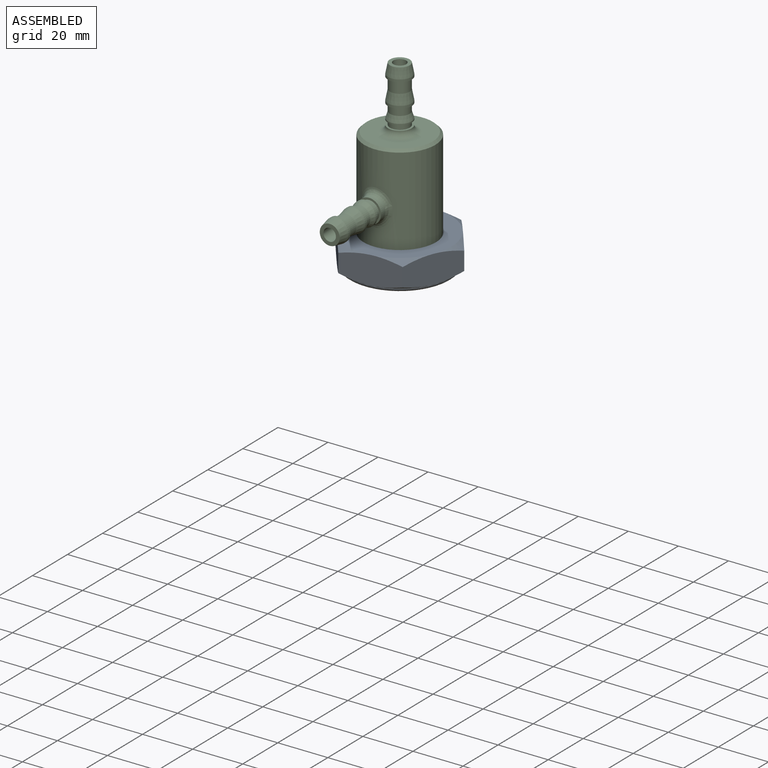
[diagram: assembled view]
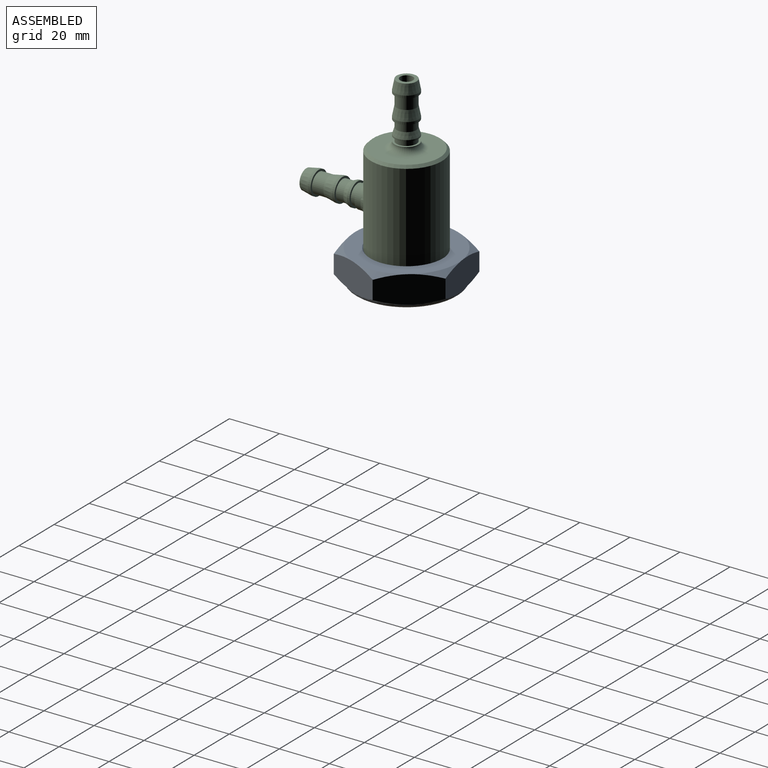
[diagram: assembled view, second angle]
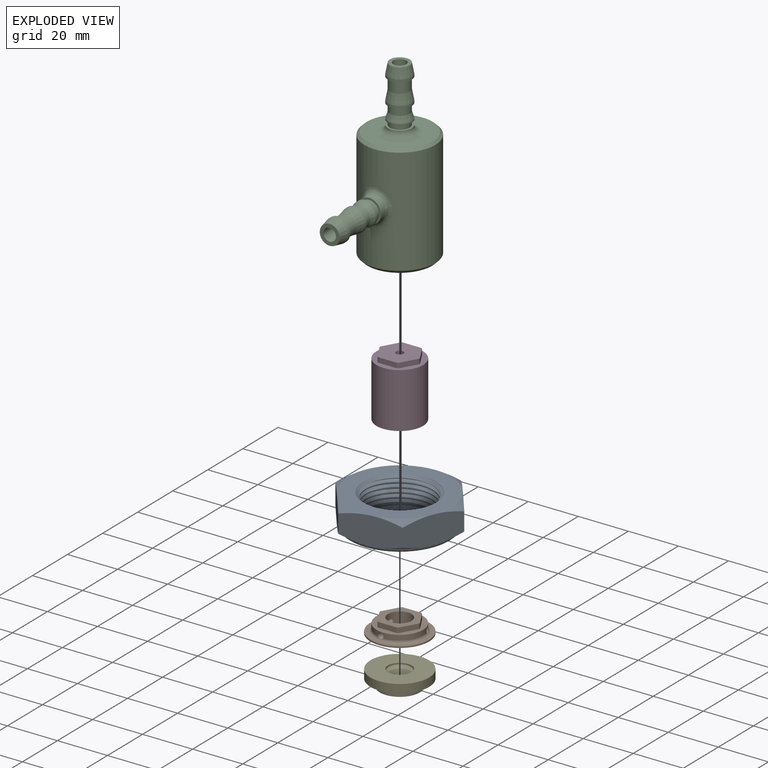
[diagram: exploded view]
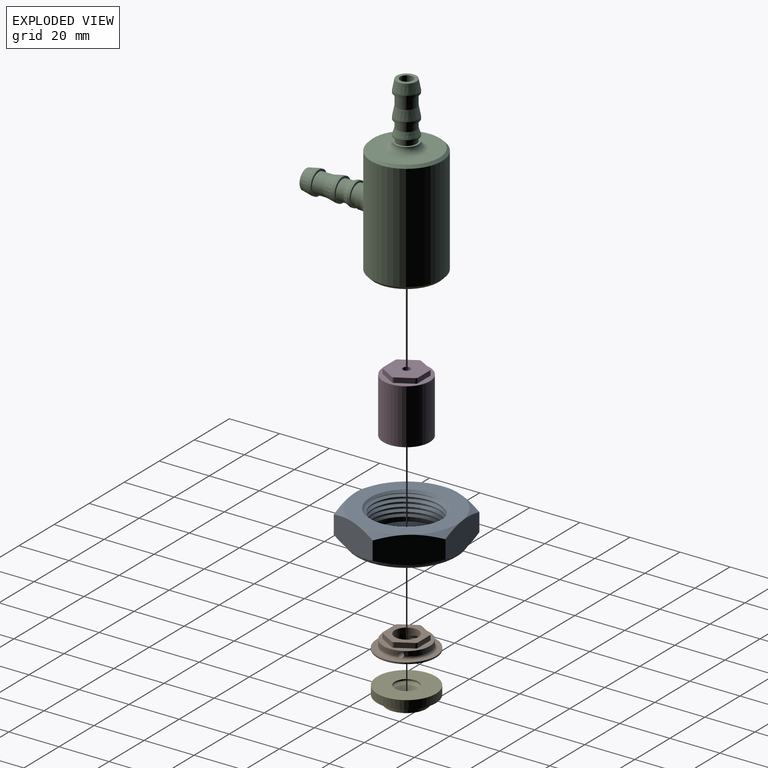
[diagram: exploded view, second angle]
ASSEMBLY  parts=5 mates=9
PART A: 32 faces, bbox 49.6x49.6x16.6 mm
  f0: plane 41.28x41.28mm, normal (0,0,1), area 672.9mm2, adj f9,f22,f23,f25,f27,f29,f31
  f1: cylinder r=13.25mm len=26.5mm, axis (0,0,1), area 146.3mm2, adj f2,f8,f10,f11,f12
  f2: cylinder r=13.25mm len=26.5mm, axis (0,0,1), area 37.7mm2, adj f1,f3,f10,f11
  f3: cylinder r=13.25mm len=26.5mm, axis (0,0,1), area 37.8mm2, adj f2,f4,f10,f11
  f4: cylinder r=13.25mm len=26.5mm, axis (0,0,1), area 37.8mm2, adj f3,f5,f10,f11
  f5: cylinder r=13.25mm len=26.5mm, axis (0,0,1), area 29.6mm2, adj f4,f9,f10,f11
  f6: cylinder r=8mm len=16mm, axis (0,0,1), area 150.8mm2, adj f7,f8
  f7: revolved ~41.28x41.28mm, area 1264.5mm2, adj f6,f14,f21,f24,f26,f28,f30
  f8: plane 26.5x26.5mm, normal (0,0,1), area 350.5mm2, adj f1,f6
  f9: cone r=13.25mm half-angle=45deg, axis (0,0,1), area 108.5mm2, adj f0,f5,f10,f11,f13
  f10: bspline ~32.87x28.46mm, area 495.7mm2, adj f1,f2,f3,f4,f5,f9,f12,f13
  f11: bspline ~32.87x28.46mm, area 453.5mm2, adj f1,f2,f3,f4,f5,f9,f12,f13
  f12: plane 1.37x1.03mm, normal (0.97,-0.26,0), area 0.8mm2, adj f1,f10,f11,f13
  f13: bspline ~33.09x28.66mm, area 126.4mm2, adj f9,f10,f11,f12
  f14: cone r=20.64mm half-angle=60deg, axis (0,0,1), area 41.9mm2, adj f7,f15,f20
  f15: plane 22.59x13.87mm, normal (0.87,-0.5,0), area 232mm2, adj f14,f16,f20,f21,f22,f23
  f16: plane 25.81x12.97mm, normal (0,-1,0), area 232mm2, adj f15,f17,f21,f23,f24,f25
  f17: plane 22.59x13.87mm, normal (-0.87,-0.5,0), area 232mm2, adj f16,f18,f24,f25,f26,f27
  f18: plane 22.59x13.87mm, normal (-0.87,0.5,0), area 232mm2, adj f17,f19,f26,f27,f28,f29
  f19: plane 25.81x12.97mm, normal (0,1,0), area 232mm2, adj f18,f20,f28,f29,f30,f31
  f20: plane 22.59x13.87mm, normal (0.87,0.5,0), area 232mm2, adj f14,f15,f19,f22,f30,f31
  f21: cone r=20.64mm half-angle=60deg, axis (0,0,1), area 41.9mm2, adj f7,f15,f16
  f22: cone r=20.64mm half-angle=60deg, axis (0,0,-1), area 41.9mm2, adj f0,f15,f20
  f23: cone r=20.64mm half-angle=60deg, axis (0,0,-1), area 41.9mm2, adj f0,f15,f16
  f24: cone r=20.64mm half-angle=60deg, axis (0,0,1), area 41.9mm2, adj f7,f16,f17
  f25: cone r=20.64mm half-angle=60deg, axis (0,0,-1), area 41.9mm2, adj f0,f16,f17
  f26: cone r=20.64mm half-angle=60deg, axis (0,0,1), area 41.9mm2, adj f7,f17,f18
  f27: cone r=20.64mm half-angle=60deg, axis (0,0,-1), area 41.9mm2, adj f0,f17,f18
  f28: cone r=20.64mm half-angle=60deg, axis (0,0,1), area 41.9mm2, adj f7,f18,f19
  f29: cone r=20.64mm half-angle=60deg, axis (0,0,-1), area 41.9mm2, adj f0,f18,f19
  f30: cone r=20.64mm half-angle=60deg, axis (0,0,1), area 41.9mm2, adj f7,f19,f20
  f31: cone r=20.64mm half-angle=60deg, axis (0,0,-1), area 41.9mm2, adj f0,f19,f20
PART B: 25 faces, bbox 23.7x23.7x5.6 mm
  f0: plane 18.94x18.94mm, normal (0,0,1), area 102.5mm2, adj f3,f10,f11,f12,f13,f14,f15,f16
  f1: cylinder r=1.1mm len=8.29mm, axis (1,0,0), area 39.9mm2, adj f3,f5,f6
  f2: cylinder r=1.1mm len=8.28mm, axis (-0.5,-0.87,0), area 40.1mm2, adj f3,f5,f6
  f3: cylinder r=9.3mm len=18.6mm, axis (0,0,-1), area 107.3mm2, adj f0,f1,f2,f4,f6
  f4: cylinder r=1.1mm len=8.28mm, axis (-0.5,0.87,0), area 40.1mm2, adj f3,f5,f6
  f5: cylinder r=4.7mm len=9.4mm, axis (0,0,-1), area 86.9mm2, adj f1,f2,f4,f7,f21,f22
  f6: torus R=10.3mm, axis (0,0,-1), area 92.5mm2, adj f1,f2,f3,f4,f8
  f7: plane 23.71x23.71mm, normal (0,0,-1), area 360.7mm2, adj f5,f9
  f8: plane 23.71x23.71mm, normal (0,0,1), area 96.8mm2, adj f6,f9
  f9: cylinder r=11.7mm len=23.4mm, axis (0,0,-1), area 44.1mm2, adj f7,f8
  f10: plane 6x3.46mm, normal (0.87,-0.5,0), area 13.8mm2, adj f0,f11,f23,f24
  f11: cylinder r=1mm len=2mm, axis (0,0,-1), area 2.1mm2, adj f0,f10,f12,f24
  f12: plane 6x3.46mm, normal (0.87,0.5,0), area 13.8mm2, adj f0,f11,f13,f24
  f13: cylinder r=1mm len=2mm, axis (0,0,-1), area 2.1mm2, adj f0,f12,f14,f24
  f14: plane 6.92x2mm, normal (0,1,0), area 13.8mm2, adj f0,f13,f15,f24
  f15: cylinder r=1mm len=2mm, axis (0,0,-1), area 2.1mm2, adj f0,f14,f16,f24
  f16: plane 6x3.46mm, normal (-0.87,0.5,0), area 13.8mm2, adj f0,f15,f17,f24
  f17: cylinder r=1mm len=2mm, axis (0,0,-1), area 2.1mm2, adj f0,f16,f18,f24
  f18: plane 6x3.46mm, normal (-0.87,-0.5,0), area 13.8mm2, adj f0,f17,f19,f24
  f19: cylinder r=1mm len=2mm, axis (0,0,-1), area 2.1mm2, adj f0,f18,f20,f24
  f20: plane 6.92x2mm, normal (0,-1,0), area 13.8mm2, adj f0,f19,f23,f24
  f21: extruded ~8.82x6.95mm, area 29.5mm2, adj f5,f22,f24
  f22: extruded ~8.82x6.95mm, area 29.5mm2, adj f5,f21,f24
  f23: cylinder r=1mm len=2mm, axis (0,0,-1), area 2.1mm2, adj f0,f10,f20,f24
  f24: plane 15.85x13.99mm, normal (0,0,1), area 99.8mm2, adj f10,f11,f12,f13,f14,f15,f16,f17
PART C: 55 faces, bbox 28.4x54.2x70 mm
  f0: plane 7.94x7.94mm, normal (0,0,1), area 29mm2, adj f9,f45
  f1: cylinder r=1.5mm len=4.56mm, axis (0,0,1), area 43mm2, adj f6,f8
  f2: cylinder r=11.7mm len=27mm, axis (0,0,1), area 1965mm2, adj f3,f7,f39
  f3: plane 25.8x25.8mm, normal (0,0,-1), area 92.7mm2, adj f2,f13
  f4: cylinder r=14.2mm len=42.7mm, axis (0,0,1), area 3665.1mm2, adj f11,f12,f13
  f5: plane 26.4x26.4mm, normal (0,0,1), area 381.7mm2, adj f12,f41
  f6: plane 15.86x14mm, normal (0,0,-1), area 162.3mm2, adj f1,f14,f15,f16,f17,f18,f19,f20
  f7: plane 23.4x23.4mm, normal (0,0,-1), area 260.6mm2, adj f2,f14,f15,f16,f17,f18,f19,f20
  f8: cone r=0mm half-angle=59deg, axis (0,0,1), area 15.6mm2, adj f1,f9
  f9: cylinder r=2.55mm len=35.81mm, axis (0,0,1), area 574.4mm2, adj f0,f8
  f10: cylinder r=4.76mm len=9.53mm, axis (0,-1,0), area 47.8mm2, adj f11,f28
  f11: bspline ~14.54x12.37mm, area 116.6mm2, adj f4,f10
  f12: cone r=13.2mm half-angle=45deg, axis (0,0,-1), area 121.7mm2, adj f4,f5
  f13: cone r=14.2mm half-angle=45deg, axis (0,0,1), area 156.5mm2, adj f3,f4
  f14: plane 6x3.46mm, normal (-0.87,0.5,0), area 13.9mm2, adj f6,f7,f20,f25
  f15: plane 6.93x2mm, normal (0,1,0), area 13.9mm2, adj f6,f7,f20,f21
  f16: plane 6x3.46mm, normal (0.87,0.5,0), area 13.9mm2, adj f6,f7,f21,f22
  f17: plane 6x3.46mm, normal (0.87,-0.5,0), area 13.9mm2, adj f6,f7,f22,f23
  f18: plane 6.93x2mm, normal (0,-1,0), area 13.9mm2, adj f6,f7,f23,f24
  f19: plane 6x3.46mm, normal (-0.87,-0.5,0), area 13.9mm2, adj f6,f7,f24,f25
  f20: cylinder r=1mm len=2mm, axis (0,0,-1), area 2.1mm2, adj f6,f7,f14,f15
  f21: cylinder r=1mm len=2mm, axis (0,0,-1), area 2.1mm2, adj f6,f7,f15,f16
  f22: cylinder r=1mm len=2mm, axis (0,0,-1), area 2.1mm2, adj f6,f7,f16,f17
  f23: cylinder r=1mm len=2mm, axis (0,0,-1), area 2.1mm2, adj f6,f7,f17,f18
  f24: cylinder r=1mm len=2mm, axis (0,0,-1), area 2.1mm2, adj f6,f7,f18,f19
  f25: cylinder r=1mm len=2mm, axis (0,0,-1), area 2.1mm2, adj f6,f7,f14,f19
  f26: plane 9.53x9.53mm, normal (0,1,0), area 21.8mm2, adj f27,f29
  f27: cylinder r=3.97mm len=7.94mm, axis (0,1,0), area 49.9mm2, adj f26,f28
  f28: plane 9.53x9.53mm, normal (0,-1,0), area 21.8mm2, adj f10,f27
  f29: cylinder r=4.76mm len=9.53mm, axis (0,-1,0), area 29.9mm2, adj f26,f32
  f30: plane 9.53x9.53mm, normal (0,1,0), area 21.8mm2, adj f31,f33
  f31: cylinder r=3.97mm len=7.94mm, axis (0,1,0), area 74.8mm2, adj f30,f32
  f32: cone r=3.97mm half-angle=21.6deg, axis (0,1,0), area 59mm2, adj f29,f31
  f33: cylinder r=4.76mm len=9.53mm, axis (0,-1,0), area 29.9mm2, adj f30,f36
  f34: plane 9.53x9.53mm, normal (0,1,0), area 21.8mm2, adj f35,f37
  f35: cylinder r=3.97mm len=7.94mm, axis (0,1,0), area 112.8mm2, adj f34,f36
  f36: cone r=3.97mm half-angle=11.2deg, axis (0,1,0), area 111.9mm2, adj f33,f35
  f37: cylinder r=4.76mm len=9.53mm, axis (0,-1,0), area 29.9mm2, adj f34,f38
  f38: cone r=3.97mm half-angle=11.2deg, axis (0,1,0), area 111.9mm2, adj f37,f40
  f39: cylinder r=2.5mm len=28.57mm, axis (0,-1,0), area 446.7mm2, adj f2,f40
  f40: plane 7.94x7.94mm, normal (0,-1,0), area 29.8mm2, adj f38,f39
  f41: torus R=7.26mm, axis (0,0,1), area 139.2mm2, adj f5,f44
  f42: plane 9.53x9.53mm, normal (0,0,-1), area 21.8mm2, adj f43,f46
  f43: cylinder r=3.97mm len=7.94mm, axis (0,0,-1), area 49.9mm2, adj f42,f44
  f44: plane 9.53x9.53mm, normal (0,0,1), area 21.8mm2, adj f41,f43
  f45: cone r=3.97mm half-angle=11.2deg, axis (0,0,-1), area 111.9mm2, adj f0,f54
  f46: cylinder r=4.76mm len=9.53mm, axis (0,0,-1), area 15mm2, adj f42,f49
  f47: plane 9.53x9.53mm, normal (0,0,-1), area 21.8mm2, adj f48,f50
  f48: cylinder r=3.97mm len=7.94mm, axis (0,0,-1), area 74.8mm2, adj f47,f49
  f49: cone r=3.97mm half-angle=17.6deg, axis (0,0,-1), area 71.9mm2, adj f46,f48
  f50: cylinder r=4.76mm len=9.53mm, axis (0,0,-1), area 29.9mm2, adj f47,f53
  f51: plane 9.53x9.53mm, normal (0,0,-1), area 21.8mm2, adj f52,f54
  f52: cylinder r=3.97mm len=7.94mm, axis (0,0,-1), area 112.8mm2, adj f51,f53
  f53: cone r=3.97mm half-angle=11.2deg, axis (0,0,-1), area 111.9mm2, adj f50,f52
  f54: cylinder r=4.76mm len=9.53mm, axis (0,0,-1), area 29.9mm2, adj f45,f51
PART D: 32 faces, bbox 18.6x18.6x24 mm
  f0: plane 18.6x18.6mm, normal (0,0,-1), area 102.3mm2, adj f7,f20,f21,f22,f23,f24,f25,f26
  f1: plane 18.6x18.6mm, normal (0,0,1), area 102.8mm2, adj f7,f8,f9,f10,f11,f12,f13,f14
  f2: plane 15.83x13.98mm, normal (0,0,1), area 161.9mm2, adj f3,f8,f9,f10,f11,f12,f13,f14
  f3: cylinder r=1.5mm len=24mm, axis (0,0,1), area 226.2mm2, adj f2,f4
  f4: plane 9.38x9.38mm, normal (0,0,-1), area 62mm2, adj f3,f5
  f5: cylinder r=4.69mm len=9.38mm, axis (0,0,1), area 58.9mm2, adj f4,f6
  f6: plane 15.86x14mm, normal (0,0,-1), area 100.3mm2, adj f5,f20,f21,f22,f23,f24,f25,f26
  f7: cylinder r=9.3mm len=22mm, axis (0,0,1), area 1285.5mm2, adj f0,f1
  f8: plane 5.99x3.46mm, normal (0.87,0.5,0), area 13.8mm2, adj f1,f2,f14,f19
  f9: plane 6.92x2mm, normal (0,1,0), area 13.8mm2, adj f1,f2,f14,f15
  f10: plane 5.99x3.46mm, normal (-0.87,0.5,0), area 13.8mm2, adj f1,f2,f15,f16
  f11: plane 5.99x3.46mm, normal (-0.87,-0.5,0), area 13.8mm2, adj f1,f2,f16,f17
  f12: plane 6.92x2mm, normal (0,-1,0), area 13.8mm2, adj f1,f2,f17,f18
  f13: plane 5.99x3.46mm, normal (0.87,-0.5,0), area 13.8mm2, adj f1,f2,f18,f19
  f14: cylinder r=1mm len=2mm, axis (0,0,1), area 2.1mm2, adj f1,f2,f8,f9
  f15: cylinder r=1mm len=2mm, axis (0,0,1), area 2.1mm2, adj f1,f2,f9,f10
  f16: cylinder r=1mm len=2mm, axis (0,0,1), area 2.1mm2, adj f1,f2,f10,f11
  f17: cylinder r=1mm len=2mm, axis (0,0,1), area 2.1mm2, adj f1,f2,f11,f12
  f18: cylinder r=1mm len=2mm, axis (0,0,1), area 2.1mm2, adj f1,f2,f12,f13
  f19: cylinder r=1mm len=2mm, axis (0,0,1), area 2.1mm2, adj f1,f2,f8,f13
  f20: plane 6x3.46mm, normal (-0.87,0.5,0), area 13.9mm2, adj f0,f6,f26,f27
  f21: plane 6.93x2mm, normal (0,1,0), area 13.9mm2, adj f0,f6,f27,f28
  f22: plane 6x3.46mm, normal (0.87,0.5,0), area 13.9mm2, adj f0,f6,f28,f29
  f23: plane 6x3.46mm, normal (0.87,-0.5,0), area 13.9mm2, adj f0,f6,f29,f30
  f24: plane 6x3.46mm, normal (-0.87,-0.5,0), area 13.9mm2, adj f0,f6,f26,f31
  f25: plane 6.93x2mm, normal (0,-1,0), area 13.9mm2, adj f0,f6,f30,f31
  f26: cylinder r=1mm len=2mm, axis (0,0,-1), area 2.1mm2, adj f0,f6,f20,f24
  f27: cylinder r=1mm len=2mm, axis (0,0,-1), area 2.1mm2, adj f0,f6,f20,f21
  f28: cylinder r=1mm len=2mm, axis (0,0,-1), area 2.1mm2, adj f0,f6,f21,f22
  f29: cylinder r=1mm len=2mm, axis (0,0,-1), area 2.1mm2, adj f0,f6,f22,f23
  f30: cylinder r=1mm len=2mm, axis (0,0,-1), area 2.1mm2, adj f0,f6,f23,f25
  f31: cylinder r=1mm len=2mm, axis (0,0,-1), area 2.1mm2, adj f0,f6,f24,f25
PART E: 14 faces, bbox 23.4x23.4x6.4 mm
  f0: cone r=4.41mm half-angle=50deg, axis (0,0,-1), area 22.7mm2, adj f1,f13
  f1: plane 15.99x15.99mm, normal (0,0,-1), area 122.3mm2, adj f0,f2
  f2: cylinder r=8mm len=15.99mm, axis (0,0,-1), area 150.7mm2, adj f1,f3
  f3: plane 23.39x23.39mm, normal (0,0,-1), area 228.9mm2, adj f2,f4
  f4: cylinder r=11.7mm len=23.39mm, axis (0,0,-1), area 249.5mm2, adj f3,f5
  f5: plane 23.39x23.39mm, normal (0,0,1), area 360.3mm2, adj f4,f6
  f6: cylinder r=4.7mm len=9.4mm, axis (0,0,-1), area 12.1mm2, adj f5,f7
  f7: torus R=4.2mm, axis (0,0,-1), area 15.2mm2, adj f6,f8
  f8: cone r=4.45mm half-angle=60deg, axis (0,0,1), area 69.1mm2, adj f7,f9
  f9: torus R=1mm, axis (0,0,-1), area 1.3mm2, adj f8,f10
  f10: cylinder r=0.75mm len=1.5mm, axis (0,0,-1), area 2mm2, adj f9,f11
  f11: torus R=1mm, axis (0,0,-1), area 1.1mm2, adj f10,f12
  f12: cone r=0.84mm half-angle=50deg, axis (0,0,-1), area 62.7mm2, adj f11,f13
  f13: cone r=4mm half-angle=40deg, axis (0,0,1), area 17mm2, adj f0,f12
PLACE A rot(axis=(0,0,1),127.3deg) t=(9.77,-4.32,-19.12)mm
PLACE B t=(9.77,-4.32,-12.71)mm
PLACE C t=(9.77,-4.32,-14.11)mm fixed
PLACE D t=(9.77,-4.32,-9.11)mm
PLACE E rot(axis=(0,0,-1),74deg) t=(9.77,-4.32,-19.11)mm
MATE cylindrical D.f3 <-> C.f1  axis (0,0,1) through (9.77,-4.32,1.89)mm
MATE planar C.f1 <-> D.f3  axis (0,0,-1) through (9.77,-4.32,14.89)mm
MATE slider C.f1 <-> B.f3  axis (0,0,1) through (9.77,-4.32,-0.61)mm
MATE planar D.f29 <-> B.f19  axis (0,0,-1) through (2.84,-4.32,-7.11)mm
MATE cylindrical C.f1 <-> A.f1  axis (0,0,1) through (9.77,-4.32,37.98)mm
MATE parallel D.f12 <-> C.f15  axis (0,-1,0) through (9.77,-11.31,13.89)mm
MATE cylindrical C.f1 <-> E.f0  axis (0,0,1) through (9.77,-4.32,8.54)mm
MATE planar B.f6 <-> E.f0  axis (0,0,-1) through (9.77,-4.32,-12.71)mm
MATE parallel B.f10 <-> D.f20  axis (0.87,-0.5,0) through (15.83,-7.82,-8.11)mm
